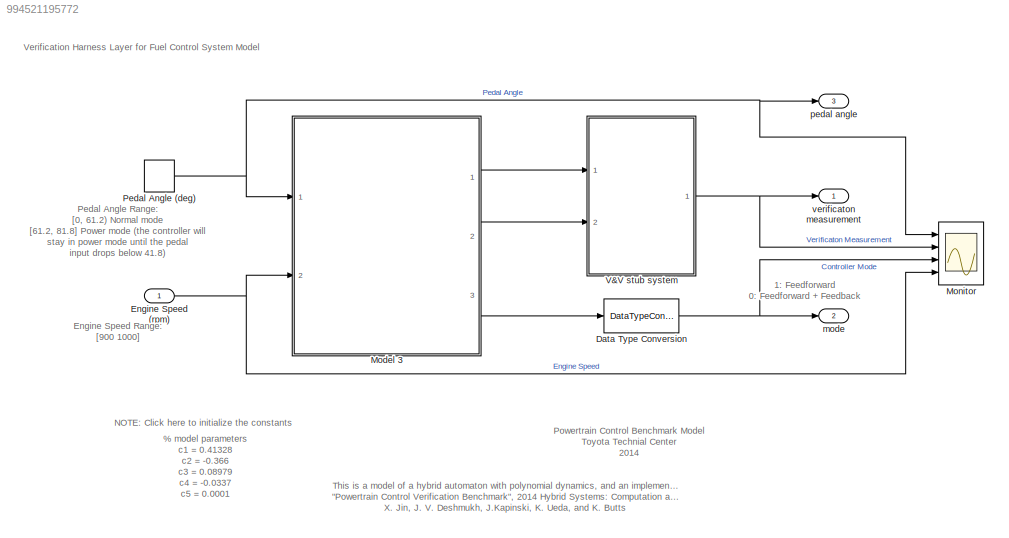
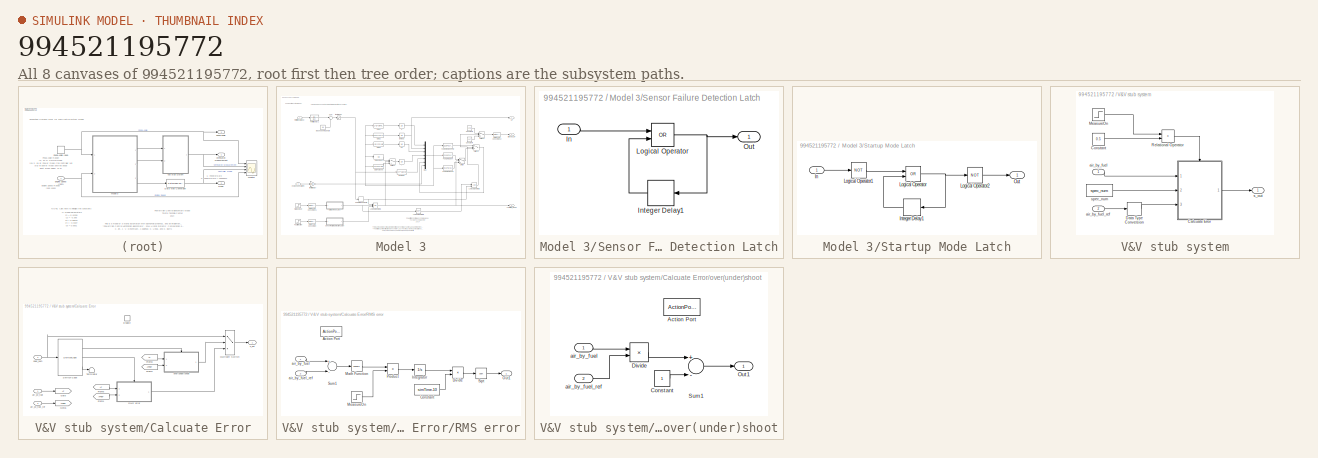
[diagram: thumbnail index - all 8 canvases of the model, root first then tree order]
MODEL slx_994521195772
KIND model
CONFIG AbsTol = auto
CONFIG EnableMultiTasking = on
CONFIG FixedStep = auto
CONFIG MaxStep = auto
CONFIG MinStep = auto
CONFIG RelTol = 1e-3
CONFIG SampleTimeConstraint = Unconstrained
CONFIG Solver = ode15s
CONFIG SolverName = ode15s
CONFIG StartTime = 0.0
CONFIG StopTime = simTime
BLOCK [DataTypeConversion] Data Type Conversion
  RndMeth = Floor
  SaturateOnIntegerOverflow = off
BLOCK [Inport] Engine Speed (rpm)
  IconDisplay = Port number
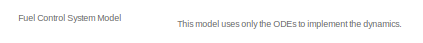
[diagram: Model 3 - part 1/2, top left region]
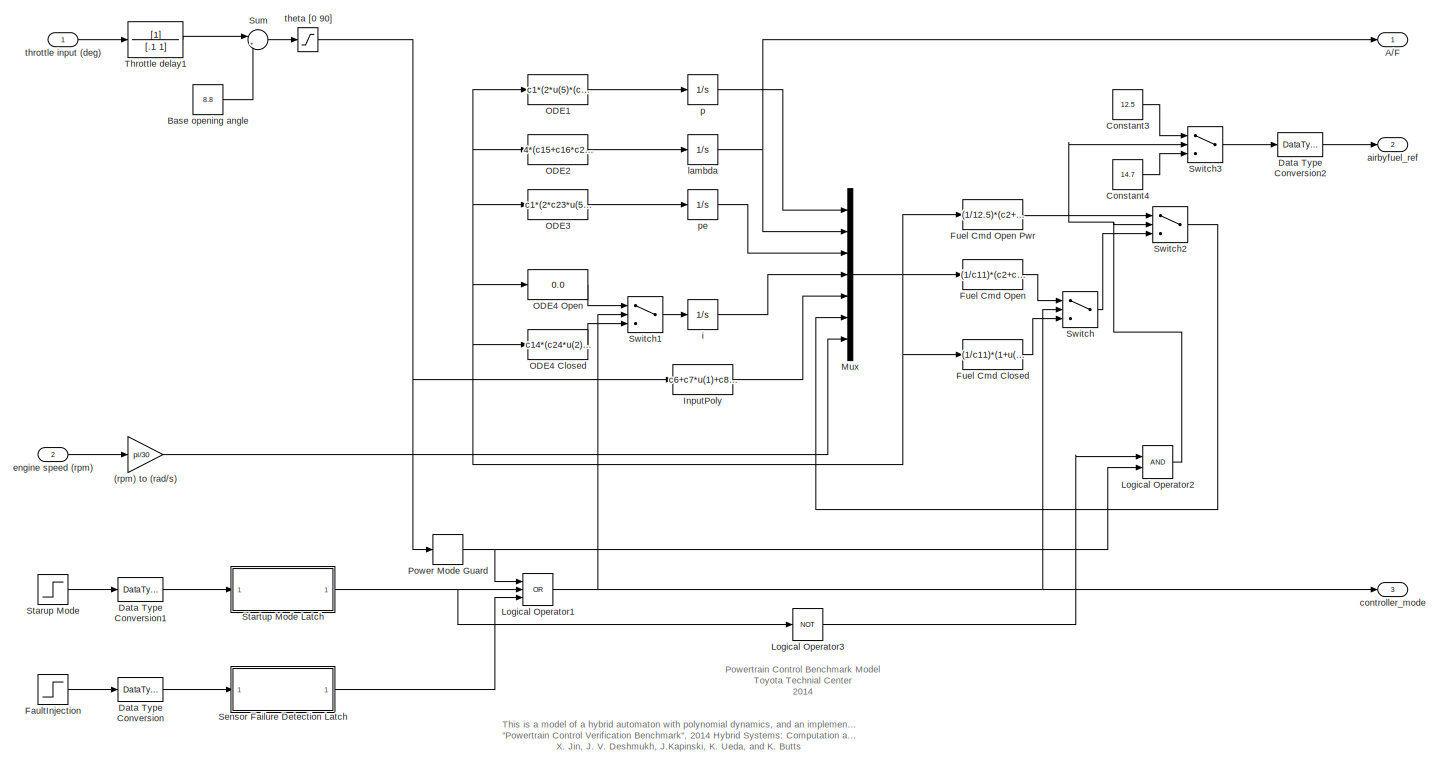
[diagram: Model 3 - part 2/2, most of the canvas]
BLOCK [SubSystem] Model 3
  Ports = [2, 3]
  Priority = 1
  RequestExecContextInheritance = off
  TreatAsAtomicUnit = on
BLOCK [Gain] Model 3/(rpm) to (rad//s)
  Gain = pi/30
  OutDataTypeStr = Inherit: Inherit via internal rule
  ParamDataTypeStr = Inherit: Inherit via internal rule
  SaturateOnIntegerOverflow = off
BLOCK [Outport] Model 3/A//F
  IconDisplay = Port number
BLOCK [Constant] Model 3/Base opening angle
  Value = 8.8
BLOCK [Constant] Model 3/Constant3
  Value = 12.5
BLOCK [Constant] Model 3/Constant4
  Value = 14.7
BLOCK [DataTypeConversion] Model 3/Data Type Conversion
  OutDataTypeStr = boolean
  RndMeth = Floor
  SaturateOnIntegerOverflow = off
BLOCK [DataTypeConversion] Model 3/Data Type Conversion1
  OutDataTypeStr = boolean
  RndMeth = Floor
  SaturateOnIntegerOverflow = off
BLOCK [DataTypeConversion] Model 3/Data Type Conversion2
  OutDataTypeStr = double
  RndMeth = Floor
  SaturateOnIntegerOverflow = off
BLOCK [Step] Model 3/FaultInjection
  AttributesFormatString = 1: Failure\n0: Normal
  SampleTime = 0
  Time = fault_time
BLOCK [Fcn] Model 3/Fuel Cmd Closed
  Expr = (1/c11)*(1+u(4)+c13*(c24*u(2)-c11))*(c2+c3*u(7)*u(3)+c4*u(7)*u(3)^2+c5*u(3)*u(7)^2)
BLOCK [Fcn] Model 3/Fuel Cmd Open
  Expr = (1/c11)*(c2+c3*u(7)*u(3)+c4*u(7)*u(3)^2+c5*u(3)*u(7)^2)
BLOCK [Fcn] Model 3/Fuel Cmd Open Pwr
  Expr = (1/12.5)*(c2+c3*u(7)*u(3)+c4*u(7)*u(3)^2+c5*u(3)*u(7)^2)
BLOCK [Fcn] Model 3/InputPoly
  Expr = c6+c7*u(1)+c8*u(1)^2+c9*u(1)^3
BLOCK [Logic] Model 3/Logical Operator1
  AllPortsSameDT = off
  Inputs = 3
  Operator = OR
  OutDataTypeStr = boolean
  Ports = [3, 1]
BLOCK [Logic] Model 3/Logical Operator2
  AllPortsSameDT = off
  OutDataTypeStr = boolean
  Ports = [2, 1]
BLOCK [Logic] Model 3/Logical Operator3
  AllPortsSameDT = off
  Inputs = 3
  Operator = NOT
  OutDataTypeStr = boolean
  Ports = [1, 1]
BLOCK [Mux] Model 3/Mux
  DisplayOption = bar
  Inputs = 7
  Ports = [7, 1]
BLOCK [Fcn] Model 3/ODE1
  Expr = c1*(2*u(5)*(c20*u(1)^2+c21*u(1)+c22) - c12*(c2+c3*u(7)*u(1)+c4*u(7)*u(1)^2+c5*u(1)*u(7)^2))
BLOCK [Fcn] Model 3/ODE2
  Expr = 4*(c15+c16*c25*u(6)+c17*c25^2*u(6)^2+c18*(c12*(c2+c3*u(7)*u(1)+c4*u(7)*u(1)^2+c5*u(1)*u(7)^2)) +c19*(c12*(c2+c3*u(7)*u(1)+c4*u(7)*u(1)^2+c5*u(1)*u(7)^2)) *c25*u(6)-u(2))
BLOCK [Fcn] Model 3/ODE3
  Expr = c1*(2*c23*u(5)*(c20*u(1)^2+c21*u(1)+c22)-(c2+c3*u(7)*u(3)+c4*u(7)*u(3)^2+c5*u(3)*u(7)^2))
BLOCK [Fcn] Model 3/ODE4 Closed
  Expr = c14*(c24*u(2)-c11)
BLOCK [Fcn] Model 3/ODE4 Open
  Expr = 0.0
BLOCK [Relay] Model 3/Power Mode Guard
  OffSwitchValue = 50
  OnSwitchValue = 70
  SampleTime = 0.01
BLOCK [SubSystem] Model 3/Sensor Failure Detection Latch
  Ports = [1, 1]
  RequestExecContextInheritance = off
  TreatAsAtomicUnit = on
BLOCK [Inport] Model 3/Sensor Failure Detection Latch/In
  IconDisplay = Port number
BLOCK [Delay] Model 3/Sensor Failure Detection Latch/Integer Delay1
  DelayLength = 1
  InputPortMap = u0
  Ports = [1, 1]
  SampleTime = 0.01
  UserDataPersistent = on
BLOCK [Logic] Model 3/Sensor Failure Detection Latch/Logical Operator
  AllPortsSameDT = off
  Operator = OR
  Ports = [2, 1]
BLOCK [Outport] Model 3/Sensor Failure Detection Latch/Out
  IconDisplay = Port number
BLOCK [SubSystem] Model 3/Startup Mode Latch
  Ports = [1, 1]
  RequestExecContextInheritance = off
  TreatAsAtomicUnit = on
BLOCK [Inport] Model 3/Startup Mode Latch/In
  IconDisplay = Port number
BLOCK [Delay] Model 3/Startup Mode Latch/Integer Delay1
  DelayLength = 1
  InputPortMap = u0
  Ports = [1, 1]
  SampleTime = 0.01
  UserDataPersistent = on
BLOCK [Logic] Model 3/Startup Mode Latch/Logical Operator
  AllPortsSameDT = off
  Operator = OR
  Ports = [2, 1]
BLOCK [Logic] Model 3/Startup Mode Latch/Logical Operator1
  AllPortsSameDT = off
  Operator = NOT
  Ports = [1, 1]
BLOCK [Logic] Model 3/Startup Mode Latch/Logical Operator2
  AllPortsSameDT = off
  Operator = NOT
  Ports = [1, 1]
BLOCK [Outport] Model 3/Startup Mode Latch/Out
  IconDisplay = Port number
BLOCK [Step] Model 3/Starup Mode
  After = 0
  Before = 1
  SampleTime = 0
  Time = 10
BLOCK [Sum] Model 3/Sum
  IconShape = round
  InputSameDT = off
  Inputs = |++
  OutDataTypeStr = Inherit: Inherit via internal rule
  Ports = [2, 1]
  SaturateOnIntegerOverflow = off
BLOCK [Switch] Model 3/Switch
  Criteria = u2 ~= 0
  InputSameDT = off
  SaturateOnIntegerOverflow = off
BLOCK [Switch] Model 3/Switch1
  Criteria = u2 ~= 0
  InputSameDT = off
  SaturateOnIntegerOverflow = off
BLOCK [Switch] Model 3/Switch2
  Criteria = u2 ~= 0
  InputSameDT = off
  SaturateOnIntegerOverflow = off
BLOCK [Switch] Model 3/Switch3
  Criteria = u2 ~= 0
  InputSameDT = off
  SaturateOnIntegerOverflow = off
BLOCK [TransferFcn] Model 3/Throttle  delay1
  Denominator = [.1 1]
BLOCK [Outport] Model 3/airbyfuel_ref
  IconDisplay = Port number
  Port = 2
BLOCK [Outport] Model 3/controller_mode
  IconDisplay = Port number
  Port = 3
BLOCK [Inport] Model 3/engine speed (rpm)
  AttributesFormatString = %<Description>
  Description = [900,1100]
  IconDisplay = Port number
  Port = 2
BLOCK [Integrator] Model 3/i
  InitialCondition = 0.017
  Ports = [1, 1]
BLOCK [Integrator] Model 3/lambda
  InitialCondition = 14.7
  Ports = [1, 1]
BLOCK [Integrator] Model 3/p
  InitialCondition = 0.6353
  Ports = [1, 1]
BLOCK [Integrator] Model 3/pe
  InitialCondition = 0.5573
  Ports = [1, 1]
BLOCK [Saturate] Model 3/theta [0 90]
  InputPortMap = u0
  LowerLimit = 0
  Ports = [1, 1]
  UpperLimit = 90
BLOCK [Inport] Model 3/throttle input (deg)
  AttributesFormatString = %<Description>
  Description = [0, 81.2]
  IconDisplay = Port number
BLOCK [Scope] Monitor 
  Floating = off
  NumInputPorts = 4
  Ports = [4]
  ScopeSpecificationString = C++SS(StrPVP('Location','[801, 808, 2190, 1468]'),StrPVP('Open','off'),StrPVP('ZoomMode','xonly'),MxPVP('AxesTitles',54,'struct(''axes1'',''%<SignalLabel>'',''axes2'',''%<SignalLabel>'',''axes3'',''%<SignalLabel>'',''axes4'',''%<SignalLabel>'')'),MxPVP('ScopeGraphics',57,'struct(''FigureColor'',''[0.501960784313725 0.501960784313725 0.501960784313725]'',''AxesColor'',''[0 0 0]'',''AxesTickColor'',...<+486ch>
BLOCK [DiscretePulseGenerator] Pedal Angle (deg)
  Amplitude = 53.468
  Period = 20.5223
  PhaseDelay = 3
  Ports = [0, 1]
  PulseType = Time based
  PulseWidth = 50
BLOCK [SubSystem] V&V stub system
  Ports = [2, 1]
  RequestExecContextInheritance = off
  TreatAsAtomicUnit = on
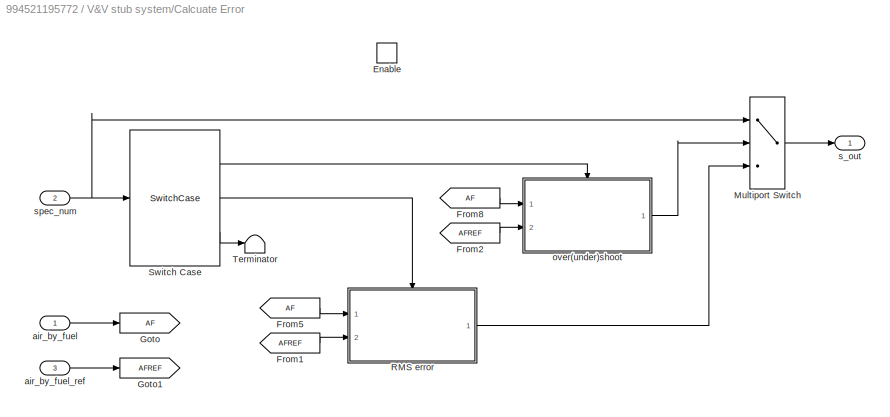
BLOCK [SubSystem] V&V stub system/Calcuate Error
  Ports = [3, 1, 1]
  Priority = 20
  RequestExecContextInheritance = off
  TreatAsAtomicUnit = on
BLOCK [EnablePort] V&V stub system/Calcuate Error/Enable
  Ports = []
BLOCK [From] V&V stub system/Calcuate Error/From1
  GotoTag = AFREF
BLOCK [From] V&V stub system/Calcuate Error/From2
  GotoTag = AFREF
BLOCK [From] V&V stub system/Calcuate Error/From5
  GotoTag = AF
BLOCK [From] V&V stub system/Calcuate Error/From8
  GotoTag = AF
BLOCK [Goto] V&V stub system/Calcuate Error/Goto
  GotoTag = AF
BLOCK [Goto] V&V stub system/Calcuate Error/Goto1
  GotoTag = AFREF
BLOCK [MultiPortSwitch] V&V stub system/Calcuate Error/Multiport Switch
  InputSameDT = off
  Inputs = 2
  Ports = [3, 1]
  SaturateOnIntegerOverflow = off
BLOCK [SubSystem] V&V stub system/Calcuate Error/RMS error
  Ports = [2, 1, 0, 0, 0, 0, 0, 1]
  RequestExecContextInheritance = off
  TreatAsAtomicUnit = on
BLOCK [ActionPort] V&V stub system/Calcuate Error/RMS error/Action Port
  ActionPortLabel = case: { }
BLOCK [Constant] V&V stub system/Calcuate Error/RMS error/Constant
  Value = simTime-10
BLOCK [Product] V&V stub system/Calcuate Error/RMS error/Divide
  InputSameDT = off
  Inputs = */
  OutDataTypeStr = Inherit: Inherit via internal rule
  Ports = [2, 1]
  RndMeth = Floor
  SaturateOnIntegerOverflow = off
BLOCK [Integrator] V&V stub system/Calcuate Error/RMS error/Integrator
  Ports = [1, 1]
BLOCK [Math] V&V stub system/Calcuate Error/RMS error/Math Function
  Operator = square
  Ports = [1, 1]
BLOCK [Step] V&V stub system/Calcuate Error/RMS error/MeasureOn
  SampleTime = 0
  Time = 10
BLOCK [Outport] V&V stub system/Calcuate Error/RMS error/Out1
  IconDisplay = Port number
BLOCK [Product] V&V stub system/Calcuate Error/RMS error/Product
  InputSameDT = off
  OutDataTypeStr = Inherit: Inherit via internal rule
  Ports = [2, 1]
  RndMeth = Floor
  SaturateOnIntegerOverflow = off
BLOCK [Sqrt] V&V stub system/Calcuate Error/RMS error/Sqrt
BLOCK [Sum] V&V stub system/Calcuate Error/RMS error/Sum1
  Inputs = +-
  OutDataTypeStr = Inherit: Inherit via back propagation
  Ports = [2, 1]
  RndMeth = Simplest
  SaturateOnIntegerOverflow = off
BLOCK [Inport] V&V stub system/Calcuate Error/RMS error/air_by_fuel 
  IconDisplay = Port number
BLOCK [Inport] V&V stub system/Calcuate Error/RMS error/air_by_fuel_ref
  IconDisplay = Port number
  Port = 2
BLOCK [SwitchCase] V&V stub system/Calcuate Error/Switch Case
  CaseConditions = {1,2}
  Ports = [1, 3]
BLOCK [Terminator] V&V stub system/Calcuate Error/Terminator
BLOCK [Inport] V&V stub system/Calcuate Error/air_by_fuel 
  IconDisplay = Port number
BLOCK [Inport] V&V stub system/Calcuate Error/air_by_fuel_ref
  IconDisplay = Port number
  Port = 3
BLOCK [SubSystem] V&V stub system/Calcuate Error/over(under)shoot
  Ports = [2, 1, 0, 0, 0, 0, 0, 1]
  RequestExecContextInheritance = off
  TreatAsAtomicUnit = on
BLOCK [ActionPort] V&V stub system/Calcuate Error/over(under)shoot/Action Port
  ActionPortLabel = case: { }
BLOCK [Constant] V&V stub system/Calcuate Error/over(under)shoot/Constant
BLOCK [Product] V&V stub system/Calcuate Error/over(under)shoot/Divide
  InputSameDT = off
  Inputs = */
  OutDataTypeStr = Inherit: Inherit via internal rule
  Ports = [2, 1]
  RndMeth = Floor
  SaturateOnIntegerOverflow = off
BLOCK [Outport] V&V stub system/Calcuate Error/over(under)shoot/Out1
  IconDisplay = Port number
BLOCK [Sum] V&V stub system/Calcuate Error/over(under)shoot/Sum1
  Inputs = +-
  OutDataTypeStr = Inherit: Inherit via back propagation
  Ports = [2, 1]
  RndMeth = Simplest
  SaturateOnIntegerOverflow = off
BLOCK [Inport] V&V stub system/Calcuate Error/over(under)shoot/air_by_fuel 
  IconDisplay = Port number
BLOCK [Inport] V&V stub system/Calcuate Error/over(under)shoot/air_by_fuel_ref
  IconDisplay = Port number
  Port = 2
BLOCK [Outport] V&V stub system/Calcuate Error/s_out 
  IconDisplay = Port number
BLOCK [Inport] V&V stub system/Calcuate Error/spec_num
  IconDisplay = Port number
  OutDataTypeStr = uint8
  Port = 2
BLOCK [Constant] V&V stub system/Constant
  Value = 0.5
BLOCK [DataTypeConversion] V&V stub system/Data Type Conversion
  OutDataTypeStr = double
  RndMeth = Floor
  SaturateOnIntegerOverflow = off
BLOCK [Step] V&V stub system/MeasureOn
  SampleTime = 0
  Time = measureTime
BLOCK [RelationalOperator] V&V stub system/Relational Operator
  InputSameDT = off
  Operator = >
  OutDataTypeStr = boolean
  Ports = [2, 1]
BLOCK [Inport] V&V stub system/air_by_fuel 
  IconDisplay = Port number
  OutDataTypeStr = double
BLOCK [Inport] V&V stub system/air_by_fuel_ref
  IconDisplay = Port number
  Port = 2
BLOCK [Outport] V&V stub system/s_out 
  IconDisplay = Port number
BLOCK [Constant] V&V stub system/spec_num
  OutDataTypeStr = uint8
  Value = spec_num
BLOCK [Outport] mode
  IconDisplay = Port number
  Port = 2
BLOCK [Outport] pedal angle
  IconDisplay = Port number
  Port = 3
BLOCK [Outport] verificaton measurement
  IconDisplay = Port number
ANNOTATION (root): % model parameters c1 = 0.41328 c2 = -0.366 c3 = 0.08979 c4 = -0.0337 c5 = 0.0001 c6 = 2.821 c7 = -0.05231 c8 = 0.10299 c9 = -0.00063 c10 = 1.0 c11 = 14.7 c12 = 0.9 c13 = 0.04 c14 = 0.14 % coefficients of polynomial approximations c15 = 13.893 c16 = -35.2518 c17 = 20.7364 c18 = 2.6287 c19 = -1.592 c20 = -2.3421 c21 = 2.7799 c22 = -0.3273 % sensors and actuatorerror factor c23 = 1.0 c24 = 1.0 c25 =...<+212ch>
ANNOTATION (root): 1: Feedforward 0: Feedforward + Feedback
ANNOTATION (root): Engine Speed Range: [900 1000]
ANNOTATION (root): NOTE: Click here to initialize the constants
ANNOTATION (root): Pedal Angle Range: [0, 61.2) Normal mode [61.2, 81.8] Power mode (the controller will stay in power mode until the pedal input drops below 41.8)
ANNOTATION (root): Powertrain Control Benchmark Model Toyota Technial Center 2014
ANNOTATION (root): This is a model of a hybrid automaton with polynomial dynamics, and an implementation of the 3rd model that appears in "Powertrain Control Verification Benchmark", 2014 Hybrid Systems: Computation and Control, X. Jin, J. V. Deshmukh, J.Kapinski, K. Ueda, and K. Butts
ANNOTATION (root): Verification Harness Layer for Fuel Control System Model
ANNOTATION Model 3: Fuel Control System Model
ANNOTATION Model 3: Powertrain Control Benchmark Model Toyota Technial Center 2014
ANNOTATION Model 3: This is a model of a hybrid automaton with polynomial dynamics, and an implementation of the 3rd model that appears in "Powertrain Control Verification Benchmark", 2014 Hybrid Systems: Computation and Control, X. Jin, J. V. Deshmukh, J.Kapinski, K. Ueda, and K. Butts
ANNOTATION Model 3: This model uses only the ODEs to implement the dynamics.
NET Data Type Conversion:1 -> Monitor :3, mode:1
NET Engine Speed (rpm):1 -> Model 3:2, Monitor :4
LINE Model 3/(rpm) to (rad//s):1 -> Model 3/Mux:7
LINE Model 3/Base opening angle:1 -> Model 3/Sum:2
LINE Model 3/Constant3:1 -> Model 3/Switch3:1
LINE Model 3/Constant4:1 -> Model 3/Switch3:3
LINE Model 3/Data Type Conversion1:1 -> Model 3/Startup Mode Latch:1
LINE Model 3/Data Type Conversion2:1 -> Model 3/airbyfuel_ref:1
LINE Model 3/Data Type Conversion:1 -> Model 3/Sensor Failure Detection Latch:1
LINE Model 3/FaultInjection:1 -> Model 3/Data Type Conversion:1
LINE Model 3/Fuel Cmd Closed:1 -> Model 3/Switch:3
LINE Model 3/Fuel Cmd Open Pwr:1 -> Model 3/Switch2:1
LINE Model 3/Fuel Cmd Open:1 -> Model 3/Switch:1
LINE Model 3/InputPoly:1 -> Model 3/Mux:5
NET Model 3/Logical Operator1:1 -> Model 3/Switch1:2, Model 3/Switch:2, Model 3/controller_mode:1
NET Model 3/Logical Operator2:1 -> Model 3/Switch2:2, Model 3/Switch3:2
LINE Model 3/Logical Operator3:1 -> Model 3/Logical Operator2:1
NET Model 3/Mux:1 -> Model 3/Fuel Cmd Closed:1, Model 3/Fuel Cmd Open Pwr:1, Model 3/Fuel Cmd Open:1, Model 3/ODE1:1, Model 3/ODE2:1, Model 3/ODE3:1, Model 3/ODE4 Closed:1, Model 3/ODE4 Open:1
LINE Model 3/ODE1:1 -> Model 3/p:1
LINE Model 3/ODE2:1 -> Model 3/lambda:1
LINE Model 3/ODE3:1 -> Model 3/pe:1
LINE Model 3/ODE4 Closed:1 -> Model 3/Switch1:3
LINE Model 3/ODE4 Open:1 -> Model 3/Switch1:1
NET Model 3/Power Mode Guard:1 -> Model 3/Logical Operator1:1, Model 3/Logical Operator2:2
LINE Model 3/Sensor Failure Detection Latch/In:1 -> Model 3/Sensor Failure Detection Latch/Logical Operator:1
LINE Model 3/Sensor Failure Detection Latch/Integer Delay1:1 -> Model 3/Sensor Failure Detection Latch/Logical Operator:2
NET Model 3/Sensor Failure Detection Latch/Logical Operator:1 -> Model 3/Sensor Failure Detection Latch/Integer Delay1:1, Model 3/Sensor Failure Detection Latch/Out:1
LINE Model 3/Sensor Failure Detection Latch:1 -> Model 3/Logical Operator1:3
LINE Model 3/Startup Mode Latch/In:1 -> Model 3/Startup Mode Latch/Logical Operator1:1
LINE Model 3/Startup Mode Latch/Integer Delay1:1 -> Model 3/Startup Mode Latch/Logical Operator:2
LINE Model 3/Startup Mode Latch/Logical Operator1:1 -> Model 3/Startup Mode Latch/Logical Operator:1
LINE Model 3/Startup Mode Latch/Logical Operator2:1 -> Model 3/Startup Mode Latch/Out:1
NET Model 3/Startup Mode Latch/Logical Operator:1 -> Model 3/Startup Mode Latch/Integer Delay1:1, Model 3/Startup Mode Latch/Logical Operator2:1
NET Model 3/Startup Mode Latch:1 -> Model 3/Logical Operator1:2, Model 3/Logical Operator3:1
LINE Model 3/Starup Mode:1 -> Model 3/Data Type Conversion1:1
LINE Model 3/Sum:1 -> Model 3/theta [0 90]:1
LINE Model 3/Switch1:1 -> Model 3/i:1
LINE Model 3/Switch2:1 -> Model 3/Mux:6
LINE Model 3/Switch3:1 -> Model 3/Data Type Conversion2:1
LINE Model 3/Switch:1 -> Model 3/Switch2:3
LINE Model 3/Throttle  delay1:1 -> Model 3/Sum:1
LINE Model 3/engine speed (rpm):1 -> Model 3/(rpm) to (rad//s):1
LINE Model 3/i:1 -> Model 3/Mux:4
NET Model 3/lambda:1 -> Model 3/A//F:1, Model 3/Mux:2
LINE Model 3/p:1 -> Model 3/Mux:1
LINE Model 3/pe:1 -> Model 3/Mux:3
NET Model 3/theta [0 90]:1 -> Model 3/InputPoly:1, Model 3/Power Mode Guard:1
LINE Model 3/throttle input (deg):1 -> Model 3/Throttle  delay1:1
LINE Model 3:1 -> V&V stub system:1
LINE Model 3:2 -> V&V stub system:2
LINE Model 3:3 -> Data Type Conversion:1
NET Pedal Angle (deg):1 -> Model 3:1, Monitor :1, pedal angle:1
LINE V&V stub system/Calcuate Error/From1:1 -> V&V stub system/Calcuate Error/RMS error:2
LINE V&V stub system/Calcuate Error/From2:1 -> V&V stub system/Calcuate Error/over(under)shoot:2
LINE V&V stub system/Calcuate Error/From5:1 -> V&V stub system/Calcuate Error/RMS error:1
LINE V&V stub system/Calcuate Error/From8:1 -> V&V stub system/Calcuate Error/over(under)shoot:1
LINE V&V stub system/Calcuate Error/Multiport Switch:1 -> V&V stub system/Calcuate Error/s_out :1
LINE V&V stub system/Calcuate Error/RMS error/Constant:1 -> V&V stub system/Calcuate Error/RMS error/Divide:2
LINE V&V stub system/Calcuate Error/RMS error/Divide:1 -> V&V stub system/Calcuate Error/RMS error/Sqrt:1
LINE V&V stub system/Calcuate Error/RMS error/Integrator:1 -> V&V stub system/Calcuate Error/RMS error/Divide:1
LINE V&V stub system/Calcuate Error/RMS error/Math Function:1 -> V&V stub system/Calcuate Error/RMS error/Product:1
LINE V&V stub system/Calcuate Error/RMS error/MeasureOn:1 -> V&V stub system/Calcuate Error/RMS error/Product:2
LINE V&V stub system/Calcuate Error/RMS error/Product:1 -> V&V stub system/Calcuate Error/RMS error/Integrator:1
LINE V&V stub system/Calcuate Error/RMS error/Sqrt:1 -> V&V stub system/Calcuate Error/RMS error/Out1:1
LINE V&V stub system/Calcuate Error/RMS error/Sum1:1 -> V&V stub system/Calcuate Error/RMS error/Math Function:1
LINE V&V stub system/Calcuate Error/RMS error/air_by_fuel :1 -> V&V stub system/Calcuate Error/RMS error/Sum1:1
LINE V&V stub system/Calcuate Error/RMS error/air_by_fuel_ref:1 -> V&V stub system/Calcuate Error/RMS error/Sum1:2
LINE V&V stub system/Calcuate Error/RMS error:1 -> V&V stub system/Calcuate Error/Multiport Switch:3
LINE V&V stub system/Calcuate Error/Switch Case:1 -> V&V stub system/Calcuate Error/over(under)shoot:ifaction
LINE V&V stub system/Calcuate Error/Switch Case:2 -> V&V stub system/Calcuate Error/RMS error:ifaction
LINE V&V stub system/Calcuate Error/Switch Case:3 -> V&V stub system/Calcuate Error/Terminator:1
LINE V&V stub system/Calcuate Error/air_by_fuel :1 -> V&V stub system/Calcuate Error/Goto:1
LINE V&V stub system/Calcuate Error/air_by_fuel_ref:1 -> V&V stub system/Calcuate Error/Goto1:1
LINE V&V stub system/Calcuate Error/over(under)shoot/Constant:1 -> V&V stub system/Calcuate Error/over(under)shoot/Sum1:2
LINE V&V stub system/Calcuate Error/over(under)shoot/Divide:1 -> V&V stub system/Calcuate Error/over(under)shoot/Sum1:1
LINE V&V stub system/Calcuate Error/over(under)shoot/Sum1:1 -> V&V stub system/Calcuate Error/over(under)shoot/Out1:1
LINE V&V stub system/Calcuate Error/over(under)shoot/air_by_fuel :1 -> V&V stub system/Calcuate Error/over(under)shoot/Divide:1
LINE V&V stub system/Calcuate Error/over(under)shoot/air_by_fuel_ref:1 -> V&V stub system/Calcuate Error/over(under)shoot/Divide:2
LINE V&V stub system/Calcuate Error/over(under)shoot:1 -> V&V stub system/Calcuate Error/Multiport Switch:2
NET V&V stub system/Calcuate Error/spec_num:1 -> V&V stub system/Calcuate Error/Multiport Switch:1, V&V stub system/Calcuate Error/Switch Case:1
LINE V&V stub system/Calcuate Error:1 -> V&V stub system/s_out :1
LINE V&V stub system/Constant:1 -> V&V stub system/Relational Operator:2
LINE V&V stub system/Data Type Conversion:1 -> V&V stub system/Calcuate Error:3
LINE V&V stub system/MeasureOn:1 -> V&V stub system/Relational Operator:1
LINE V&V stub system/Relational Operator:1 -> V&V stub system/Calcuate Error:enable
LINE V&V stub system/air_by_fuel :1 -> V&V stub system/Calcuate Error:1
LINE V&V stub system/air_by_fuel_ref:1 -> V&V stub system/Data Type Conversion:1
LINE V&V stub system/spec_num:1 -> V&V stub system/Calcuate Error:2
NET V&V stub system:1 -> Monitor :2, verificaton measurement:1
note: NET lines group one-source signal fan-out (src -> all destinations, sorted); 1:1 wires keep LINE
